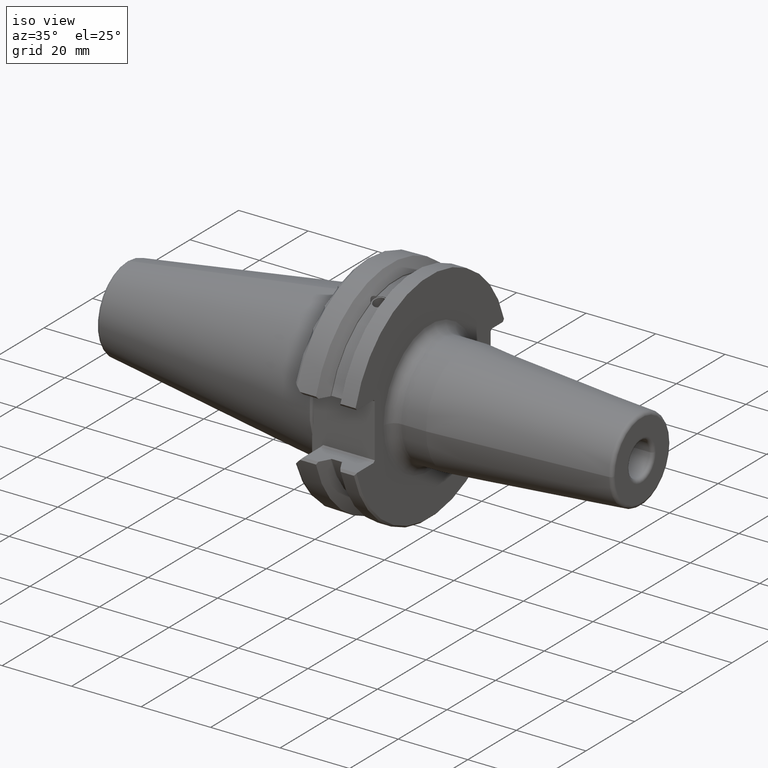
[diagram: clean part render]
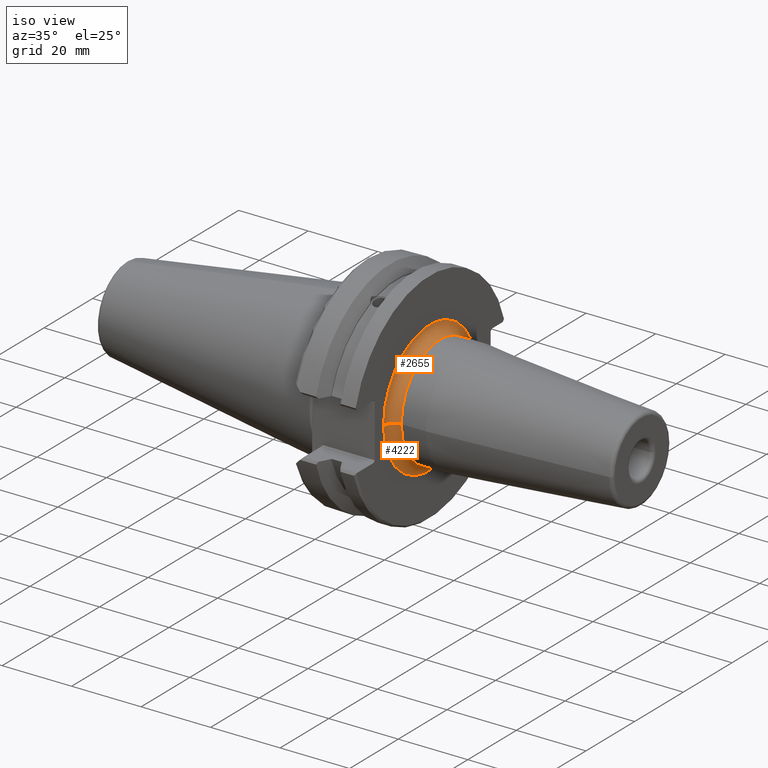
[diagram: same view with one multi-face feature highlighted, each face labeled with its STEP entity id]
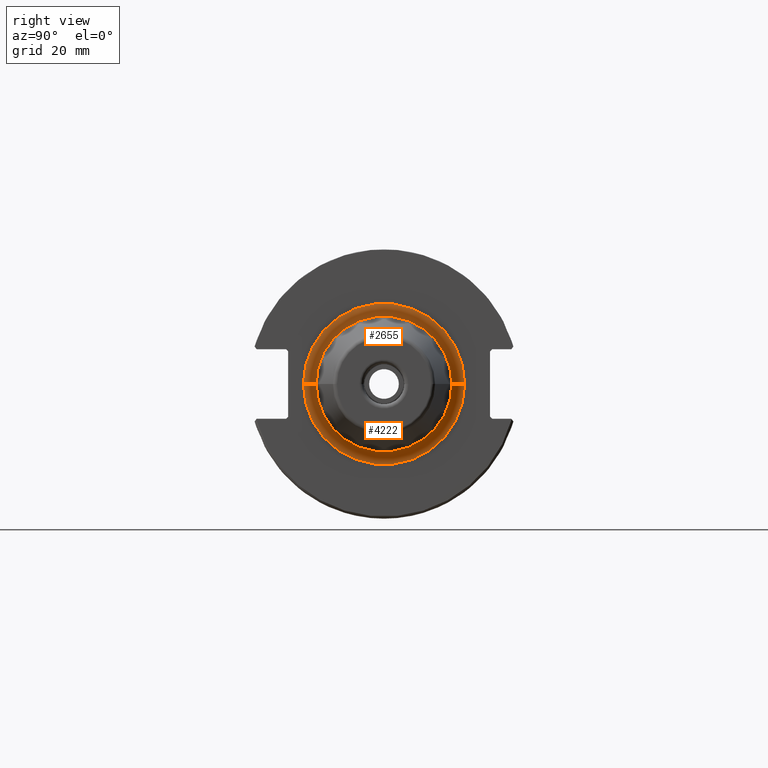
[diagram: same view with one multi-face feature highlighted, each face labeled with its STEP entity id]
A machine part, iso view. The highlighted faces form ONE feature: a constant-radius fillet chain: 2 tangent blend faces with common blend radius 3 mm. The faces share edges in the B-rep.
A second angle (right view) of the same feature is appended — it is thin or edge-on in the first view.
Their STEP definitions:
[1] entity #2655 (Torus):
#286=CARTESIAN_POINT('',(2.205E1,0.E0,0.E0));
#287=DIRECTION('',(1.E0,0.E0,0.E0));
#288=DIRECTION('',(0.E0,1.E0,0.E0));
#289=AXIS2_PLACEMENT_3D('',#286,#287,#288);
#296=CARTESIAN_POINT('',(2.205E1,1.900005840383E1,-6.484723868994E-11));
#297=DIRECTION('',(0.E0,3.413005988939E-12,1.E0));
#298=DIRECTION('',(-1.E0,-7.662019167280E-13,0.E0));
#299=AXIS2_PLACEMENT_3D('',#296,#297,#298);
#346=CARTESIAN_POINT('',(1.905E1,0.E0,0.E0));
#347=DIRECTION('',(1.E0,0.E0,0.E0));
#348=DIRECTION('',(0.E0,1.E0,0.E0));
#349=AXIS2_PLACEMENT_3D('',#346,#347,#348);
#1771=CARTESIAN_POINT('',(2.205E1,-1.900005840383E1,6.484485171043E-11));
#1772=DIRECTION('',(0.E0,-3.412877619402E-12,-1.E0));
#1773=DIRECTION('',(-1.E0,7.626492030492E-13,0.E0));
#1774=AXIS2_PLACEMENT_3D('',#1771,#1772,#1773);
#2151=CARTESIAN_POINT('',(1.905E1,-1.900005840383E1,0.E0));
#2152=CARTESIAN_POINT('',(1.905E1,1.900005840383E1,0.E0));
#2153=VERTEX_POINT('',#2151);
#2154=VERTEX_POINT('',#2152);
#2155=CARTESIAN_POINT('',(2.205E1,-1.600005840383E1,0.E0));
#2156=CARTESIAN_POINT('',(2.205E1,1.600005840383E1,0.E0));
#2157=VERTEX_POINT('',#2155);
#2158=VERTEX_POINT('',#2156);
#2641=CARTESIAN_POINT('',(2.205E1,0.E0,0.E0));
#2642=DIRECTION('',(1.E0,0.E0,0.E0));
#2643=DIRECTION('',(0.E0,9.998619269444E-1,-1.661707095185E-2));
#2644=AXIS2_PLACEMENT_3D('',#2641,#2642,#2643);
#2645=TOROIDAL_SURFACE('',#2644,1.900005840383E1,3.E0);
#2647=ORIENTED_EDGE('',*,*,#2646,.F.);
#2649=ORIENTED_EDGE('',*,*,#2648,.T.);
#2650=ORIENTED_EDGE('',*,*,#2631,.T.);
#2652=ORIENTED_EDGE('',*,*,#2651,.F.);
#2653=EDGE_LOOP('',(#2647,#2649,#2650,#2652));
#2654=FACE_OUTER_BOUND('',#2653,.F.);
#2655=ADVANCED_FACE('',(#2654),#2645,.F.);
#290=CIRCLE('',#289,1.600005840383E1);
#300=CIRCLE('',#299,3.E0);
#350=CIRCLE('',#349,1.900005840383E1);
#1775=CIRCLE('',#1774,3.E0);
#2631=EDGE_CURVE('',#2158,#2157,#290,.T.);
#2646=EDGE_CURVE('',#2154,#2153,#350,.T.);
#2648=EDGE_CURVE('',#2154,#2158,#300,.T.);
#2651=EDGE_CURVE('',#2153,#2157,#1775,.T.);
[2] entity #4222 (Torus):
#296=CARTESIAN_POINT('',(2.205E1,1.900005840383E1,-6.484723868994E-11));
#297=DIRECTION('',(0.E0,3.413005988939E-12,1.E0));
#298=DIRECTION('',(-1.E0,-7.662019167280E-13,0.E0));
#299=AXIS2_PLACEMENT_3D('',#296,#297,#298);
#341=CARTESIAN_POINT('',(1.905E1,0.E0,0.E0));
#342=DIRECTION('',(1.E0,0.E0,0.E0));
#343=DIRECTION('',(0.E0,-1.E0,0.E0));
#344=AXIS2_PLACEMENT_3D('',#341,#342,#343);
#1771=CARTESIAN_POINT('',(2.205E1,-1.900005840383E1,6.484485171043E-11));
#1772=DIRECTION('',(0.E0,-3.412877619402E-12,-1.E0));
#1773=DIRECTION('',(-1.E0,7.626492030492E-13,0.E0));
#1774=AXIS2_PLACEMENT_3D('',#1771,#1772,#1773);
#1776=CARTESIAN_POINT('',(2.205E1,0.E0,0.E0));
#1777=DIRECTION('',(1.E0,0.E0,0.E0));
#1778=DIRECTION('',(0.E0,-1.E0,0.E0));
#1779=AXIS2_PLACEMENT_3D('',#1776,#1777,#1778);
#2151=CARTESIAN_POINT('',(1.905E1,-1.900005840383E1,0.E0));
#2152=CARTESIAN_POINT('',(1.905E1,1.900005840383E1,0.E0));
#2153=VERTEX_POINT('',#2151);
#2154=VERTEX_POINT('',#2152);
#2155=CARTESIAN_POINT('',(2.205E1,-1.600005840383E1,0.E0));
#2156=CARTESIAN_POINT('',(2.205E1,1.600005840383E1,0.E0));
#2157=VERTEX_POINT('',#2155);
#2158=VERTEX_POINT('',#2156);
#4210=CARTESIAN_POINT('',(2.205E1,0.E0,0.E0));
#4211=DIRECTION('',(1.E0,0.E0,0.E0));
#4212=DIRECTION('',(0.E0,-9.998619269444E-1,1.661707095185E-2));
#4213=AXIS2_PLACEMENT_3D('',#4210,#4211,#4212);
#4214=TOROIDAL_SURFACE('',#4213,1.900005840383E1,3.E0);
#4215=ORIENTED_EDGE('',*,*,#2695,.F.);
#4216=ORIENTED_EDGE('',*,*,#2651,.T.);
#4218=ORIENTED_EDGE('',*,*,#4217,.T.);
#4219=ORIENTED_EDGE('',*,*,#2648,.F.);
#4220=EDGE_LOOP('',(#4215,#4216,#4218,#4219));
#4221=FACE_OUTER_BOUND('',#4220,.F.);
#4222=ADVANCED_FACE('',(#4221),#4214,.F.);
#300=CIRCLE('',#299,3.E0);
#345=CIRCLE('',#344,1.900005840383E1);
#1775=CIRCLE('',#1774,3.E0);
#1780=CIRCLE('',#1779,1.600005840383E1);
#2648=EDGE_CURVE('',#2154,#2158,#300,.T.);
#2651=EDGE_CURVE('',#2153,#2157,#1775,.T.);
#2695=EDGE_CURVE('',#2153,#2154,#345,.T.);
#4217=EDGE_CURVE('',#2157,#2158,#1780,.T.);